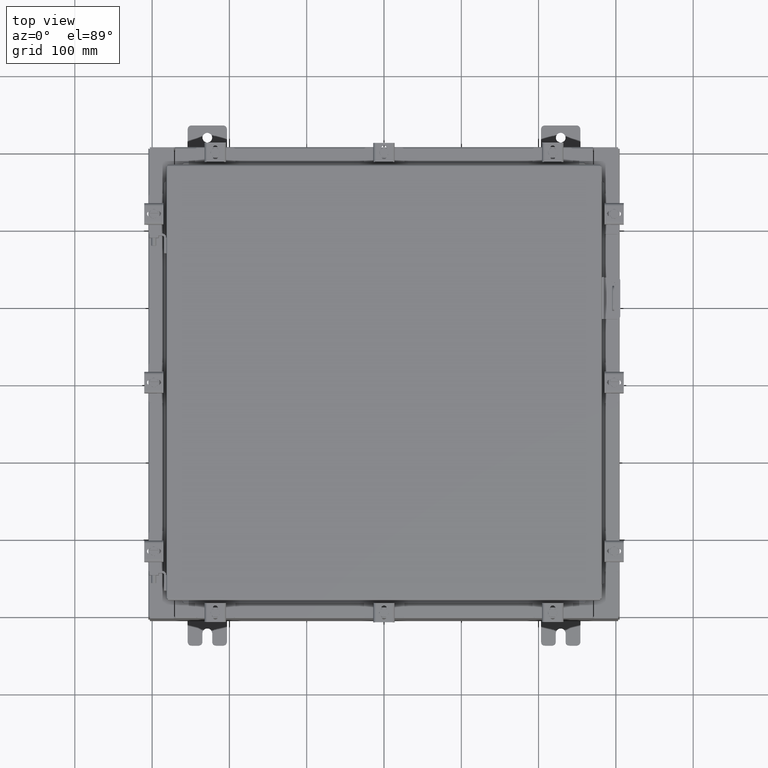
[diagram: clean part render]
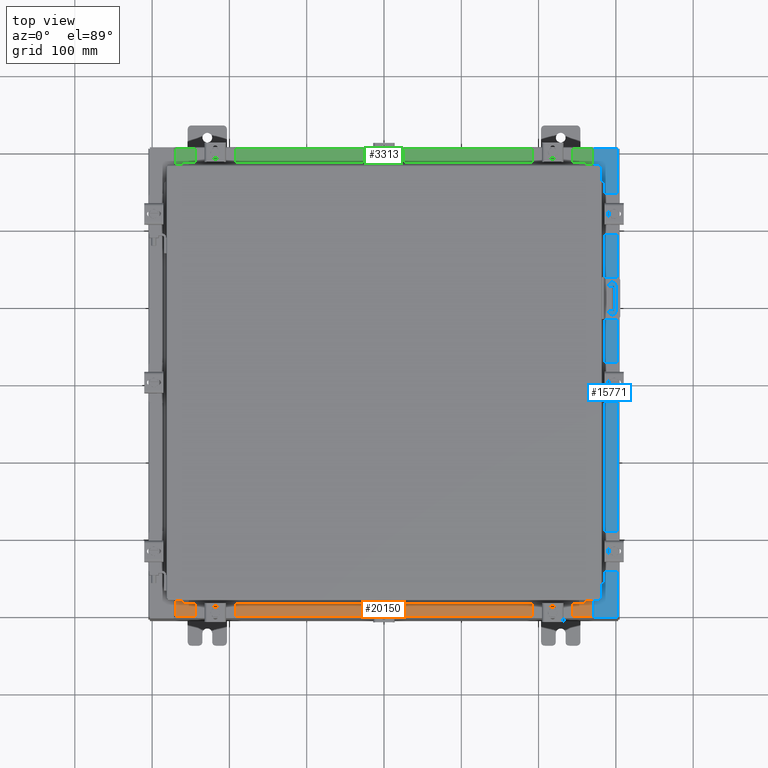
[diagram: same view with three faces highlighted in distinct colors, each labeled with its STEP entity id]
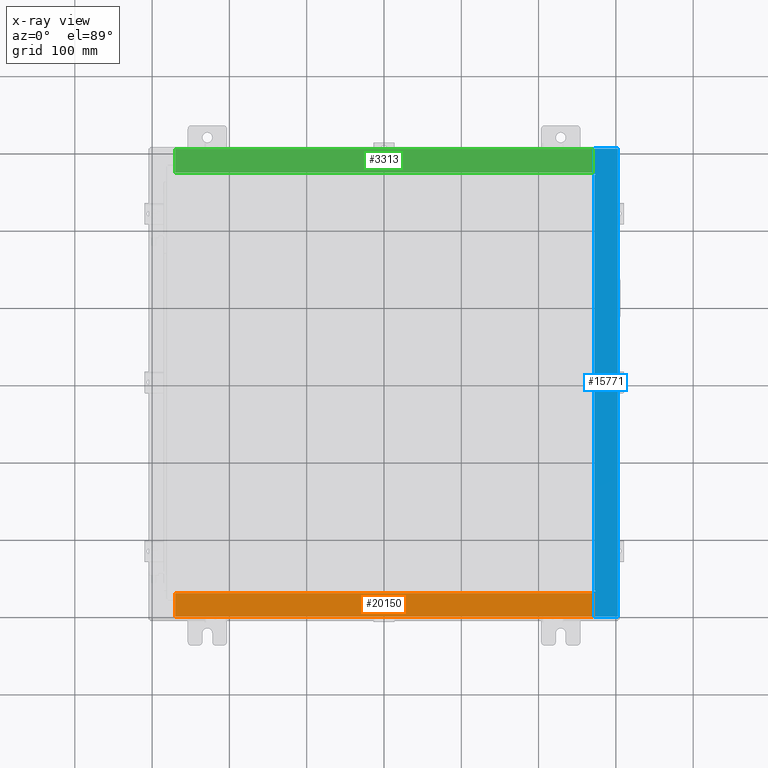
[diagram: x-ray of the same camera — body ghosted, the three highlighted faces saturated]
A machine part, top view with three faces highlighted in distinct colors.
The next image is the same camera in x-ray (body ghosted, the three faces saturated) — at least one of them is partly hidden behind the body in this view.
Their STEP definitions:

[orange] entity #20150 — the highlighted planar face has unit normal (-0, -0, 1).
#1366 = VECTOR ( 'NONE', #10856, 39.37007874015748100 ) ;
#2169 = DIRECTION ( 'NONE',  ( -1.000000000000000000, 2.568202152506545800E-017, -9.159187855938968600E-032 ) ) ;
#3078 = DIRECTION ( 'NONE',  ( -0.0000000000000000000, -1.000000000000000000, 3.566381192773190000E-015 ) ) ;
#3723 = VECTOR ( 'NONE', #6079, 39.37007874015748100 ) ;
#4505 = EDGE_CURVE ( 'NONE', #6584, #10974, #22250, .T. ) ;
#4519 = ORIENTED_EDGE ( 'NONE', *, *, #10184, .T. ) ;
#6079 = DIRECTION ( 'NONE',  ( -1.000000000000000000, 0.0000000000000000000, 0.0000000000000000000 ) ) ;
#6125 = CARTESIAN_POINT ( 'NONE',  ( -10.63720000000000200, -0.08770000000000000000, 4.000000000000000000 ) ) ;
#6481 = LINE ( 'NONE', #13547, #11128 ) ;
#6584 = VERTEX_POINT ( 'NONE', #8990 ) ;
#6663 = AXIS2_PLACEMENT_3D ( 'NONE', #10378, #22525, #12130 ) ;
#7214 = CARTESIAN_POINT ( 'NONE',  ( 10.63720000000000400, -1.287299999999999900, 4.000000000000003600 ) ) ;
#8990 = CARTESIAN_POINT ( 'NONE',  ( 10.63720000000000200, -1.287299999999999900, 4.000000000000004400 ) ) ;
#9043 = FACE_OUTER_BOUND ( 'NONE', #16691, .T. ) ;
#9597 = LINE ( 'NONE', #16118, #18339 ) ;
#10184 = EDGE_CURVE ( 'NONE', #19206, #12637, #9597, .T. ) ;
#10378 = CARTESIAN_POINT ( 'NONE',  ( 0.0000000000000000000, 1.425992975200418500E-014, 4.000000000000000000 ) ) ;
#10465 = CARTESIAN_POINT ( 'NONE',  ( -10.63720000000000200, -0.07469999999999973900, 4.000000000000000000 ) ) ;
#10653 = ORIENTED_EDGE ( 'NONE', *, *, #13399, .F. ) ;
#10856 = DIRECTION ( 'NONE',  ( -0.0000000000000000000, 1.000000000000000000, -3.566381192773190000E-015 ) ) ;
#10974 = VERTEX_POINT ( 'NONE', #21953 ) ;
#11128 = VECTOR ( 'NONE', #3078, 39.37007874015748100 ) ;
#11213 = EDGE_CURVE ( 'NONE', #10974, #12637, #14747, .T. ) ;
#12130 = DIRECTION ( 'NONE',  ( 0.0000000000000000000, -1.000000000000000000, 3.566381192773190000E-015 ) ) ;
#12637 = VERTEX_POINT ( 'NONE', #6125 ) ;
#13002 = CARTESIAN_POINT ( 'NONE',  ( 10.63720000000000400, -0.08769999999999965300, 4.000000000000000000 ) ) ;
#13399 = EDGE_CURVE ( 'NONE', #19206, #6584, #6481, .T. ) ;
#13547 = CARTESIAN_POINT ( 'NONE',  ( 10.63720000000000200, -1.300299999999999800, 4.000000000000004400 ) ) ;
#14747 = LINE ( 'NONE', #10465, #1366 ) ;
#16118 = CARTESIAN_POINT ( 'NONE',  ( -2.252313287748606700E-018, -0.08770000000000000000, 4.000000000000000900 ) ) ;
#16691 = EDGE_LOOP ( 'NONE', ( #19696, #20358, #10653, #4519 ) ) ;
#17307 = PLANE ( 'NONE',  #6663 ) ;
#18339 = VECTOR ( 'NONE', #2169, 39.37007874015748100 ) ;
#19206 = VERTEX_POINT ( 'NONE', #13002 ) ;
#19696 = ORIENTED_EDGE ( 'NONE', *, *, #11213, .F. ) ;
#20150 = ADVANCED_FACE ( 'NONE', ( #9043 ), #17307, .T. ) ;
#20358 = ORIENTED_EDGE ( 'NONE', *, *, #4505, .F. ) ;
#21953 = CARTESIAN_POINT ( 'NONE',  ( -10.63720000000000200, -1.287299999999999200, 4.000000000000004400 ) ) ;
#22250 = LINE ( 'NONE', #7214, #3723 ) ;
#22525 = DIRECTION ( 'NONE',  ( 0.0000000000000000000, 3.566381192773190000E-015, 1.000000000000000000 ) ) ;

[blue] entity #15771 — the highlighted planar face has unit normal (-0, -0, -1).
#333 = ORIENTED_EDGE ( 'NONE', *, *, #4528, .T. ) ;
#436 = DIRECTION ( 'NONE',  ( 1.000000000000000000, 0.0000000000000000000, 0.0000000000000000000 ) ) ;
#498 = DIRECTION ( 'NONE',  ( 6.241167087353086200E-015, 4.581600452255730400E-017, 1.000000000000000000 ) ) ;
#639 = VERTEX_POINT ( 'NONE', #4437 ) ;
#738 = VECTOR ( 'NONE', #21188, 39.37007874015748100 ) ;
#939 = CARTESIAN_POINT ( 'NONE',  ( 10.75005000000003000, -10.61242500000000200, 7.925300000000009800 ) ) ;
#1099 = PLANE ( 'NONE',  #1484 ) ;
#1221 = DIRECTION ( 'NONE',  ( -9.163200904511462000E-017, -1.000000000000000000, 4.581600452255787700E-017 ) ) ;
#1484 = AXIS2_PLACEMENT_3D ( 'NONE', #11587, #13355, #2900 ) ;
#1501 = VERTEX_POINT ( 'NONE', #11846 ) ;
#1634 = VERTEX_POINT ( 'NONE', #17453 ) ;
#1637 = CIRCLE ( 'NONE', #15465, 0.01867499999999949400 ) ;
#1918 = DIRECTION ( 'NONE',  ( -1.000000000000000000, 0.0000000000000000000, -2.170286390199955400E-014 ) ) ;
#1989 = CARTESIAN_POINT ( 'NONE',  ( 10.69970000000002800, 3.631055806426238000E-016, 7.925300000000008900 ) ) ;
#2619 = CIRCLE ( 'NONE', #11750, 0.01867499999999949400 ) ;
#2759 = DIRECTION ( 'NONE',  ( 1.000000000000000000, 0.0000000000000000000, 0.0000000000000000000 ) ) ;
#2801 = VERTEX_POINT ( 'NONE', #2894 ) ;
#2894 = CARTESIAN_POINT ( 'NONE',  ( 10.69970000000002800, -11.92530000000000400, 7.925300000000009800 ) ) ;
#2900 = DIRECTION ( 'NONE',  ( -1.000000000000000000, 0.0000000000000000000, 6.241167087353086200E-015 ) ) ;
#3139 = LINE ( 'NONE', #15476, #20600 ) ;
#3350 = ORIENTED_EDGE ( 'NONE', *, *, #5111, .T. ) ;
#3810 = VERTEX_POINT ( 'NONE', #6211 ) ;
#3873 = CARTESIAN_POINT ( 'NONE',  ( 10.71270000000003000, -10.59374999999999800, 7.925300000000009800 ) ) ;
#4131 = VERTEX_POINT ( 'NONE', #7353 ) ;
#4437 = CARTESIAN_POINT ( 'NONE',  ( 10.69970000000002800, 10.63109999999998600, 7.925300000000008900 ) ) ;
#4528 = EDGE_CURVE ( 'NONE', #2801, #3810, #8350, .T. ) ;
#4554 = VECTOR ( 'NONE', #1221, 39.37007874015748100 ) ;
#4602 = EDGE_CURVE ( 'NONE', #13484, #13914, #2619, .T. ) ;
#5111 = EDGE_CURVE ( 'NONE', #1501, #2801, #21139, .T. ) ;
#5399 = DIRECTION ( 'NONE',  ( 1.000000000000000000, 0.0000000000000000000, -6.241167087353087800E-015 ) ) ;
#5609 = DIRECTION ( 'NONE',  ( -0.0000000000000000000, 1.000000000000000000, -0.0000000000000000000 ) ) ;
#5721 = EDGE_CURVE ( 'NONE', #13914, #17753, #3139, .T. ) ;
#5830 = VERTEX_POINT ( 'NONE', #12265 ) ;
#5838 = CARTESIAN_POINT ( 'NONE',  ( 10.75005000000003000, -10.59375000000000200, 7.925300000000008900 ) ) ;
#5847 = ORIENTED_EDGE ( 'NONE', *, *, #13300, .F. ) ;
#5923 = CARTESIAN_POINT ( 'NONE',  ( 4.972393517341146200E-014, -11.92530000000000400, 7.925300000000076400 ) ) ;
#6082 = CARTESIAN_POINT ( 'NONE',  ( 10.69970000000002800, -10.63110000000000200, 7.925300000000008900 ) ) ;
#6127 = ORIENTED_EDGE ( 'NONE', *, *, #21948, .F. ) ;
#6211 = CARTESIAN_POINT ( 'NONE',  ( 11.91230000000002900, -11.92530000000000400, 7.925300000000000900 ) ) ;
#6829 = EDGE_CURVE ( 'NONE', #1501, #13484, #16992, .T. ) ;
#6947 = DIRECTION ( 'NONE',  ( 6.241167087353086200E-015, 4.581600452255730400E-017, 1.000000000000000000 ) ) ;
#7125 = EDGE_CURVE ( 'NONE', #1634, #4131, #7954, .T. ) ;
#7353 = CARTESIAN_POINT ( 'NONE',  ( 10.69970000000002800, 11.92529999999999600, 7.925300000000008900 ) ) ;
#7954 = LINE ( 'NONE', #12294, #16692 ) ;
#8350 = LINE ( 'NONE', #5923, #17093 ) ;
#8657 = LINE ( 'NONE', #11465, #12233 ) ;
#8761 = CARTESIAN_POINT ( 'NONE',  ( 10.75005000000003000, 10.63109999999998400, 7.925300000000009800 ) ) ;
#9374 = LINE ( 'NONE', #3873, #18130 ) ;
#10292 = ORIENTED_EDGE ( 'NONE', *, *, #21429, .F. ) ;
#10357 = VERTEX_POINT ( 'NONE', #16728 ) ;
#10616 = LINE ( 'NONE', #1989, #738 ) ;
#10634 = CARTESIAN_POINT ( 'NONE',  ( 10.69970000000002800, 3.631055806426238000E-016, 7.925300000000008900 ) ) ;
#10821 = DIRECTION ( 'NONE',  ( -4.379057701015054300E-047, -1.000000000000000000, 4.581600452255731000E-017 ) ) ;
#10991 = ORIENTED_EDGE ( 'NONE', *, *, #7125, .T. ) ;
#11465 = CARTESIAN_POINT ( 'NONE',  ( 10.71270000000003000, 10.59374999999998400, 7.925300000000009800 ) ) ;
#11587 = CARTESIAN_POINT ( 'NONE',  ( 4.972393517341146200E-014, 3.631055806426268100E-016, 7.925300000000075500 ) ) ;
#11750 = AXIS2_PLACEMENT_3D ( 'NONE', #939, #498, #436 ) ;
#11846 = CARTESIAN_POINT ( 'NONE',  ( 10.69970000000002800, -10.63110000000000200, 7.925300000000008900 ) ) ;
#11896 = VECTOR ( 'NONE', #10821, 39.37007874015748100 ) ;
#11978 = VERTEX_POINT ( 'NONE', #18541 ) ;
#12127 = ORIENTED_EDGE ( 'NONE', *, *, #17961, .F. ) ;
#12233 = VECTOR ( 'NONE', #2759, 39.37007874015748100 ) ;
#12265 = CARTESIAN_POINT ( 'NONE',  ( 10.71270000000003000, 10.59374999999998400, 7.925300000000009800 ) ) ;
#12294 = CARTESIAN_POINT ( 'NONE',  ( 4.972393517341146200E-014, 11.92529999999999600, 7.925300000000075500 ) ) ;
#12365 = VECTOR ( 'NONE', #18309, 39.37007874015748100 ) ;
#13300 = EDGE_CURVE ( 'NONE', #5830, #10357, #8657, .T. ) ;
#13302 = LINE ( 'NONE', #13454, #4554 ) ;
#13355 = DIRECTION ( 'NONE',  ( -6.241167087353086200E-015, -4.581600452255731000E-017, -1.000000000000000000 ) ) ;
#13454 = CARTESIAN_POINT ( 'NONE',  ( 11.91230000000002700, -11.92530000000000400, 7.925300000000000900 ) ) ;
#13484 = VERTEX_POINT ( 'NONE', #18956 ) ;
#13715 = EDGE_CURVE ( 'NONE', #4131, #639, #10616, .T. ) ;
#13830 = CARTESIAN_POINT ( 'NONE',  ( 10.71270000000003000, -10.59375000000000200, 7.925300000000009800 ) ) ;
#13914 = VERTEX_POINT ( 'NONE', #5838 ) ;
#13917 = VECTOR ( 'NONE', #1918, 39.37007874015748100 ) ;
#14223 = EDGE_LOOP ( 'NONE', ( #19327, #3350, #333, #14871, #10991, #19569, #6127, #10292, #5847, #12127, #15387, #22043 ) ) ;
#14871 = ORIENTED_EDGE ( 'NONE', *, *, #15184, .F. ) ;
#15184 = EDGE_CURVE ( 'NONE', #1634, #3810, #13302, .T. ) ;
#15387 = ORIENTED_EDGE ( 'NONE', *, *, #5721, .F. ) ;
#15465 = AXIS2_PLACEMENT_3D ( 'NONE', #17415, #6947, #19174 ) ;
#15476 = CARTESIAN_POINT ( 'NONE',  ( 10.75005000000003000, -10.59375000000000200, 7.925300000000009800 ) ) ;
#15771 = ADVANCED_FACE ( 'NONE', ( #17363 ), #1099, .F. ) ;
#16692 = VECTOR ( 'NONE', #17564, 39.37007874015748100 ) ;
#16728 = CARTESIAN_POINT ( 'NONE',  ( 10.75005000000003000, 10.59374999999998400, 7.925300000000007100 ) ) ;
#16992 = LINE ( 'NONE', #6082, #12365 ) ;
#17093 = VECTOR ( 'NONE', #5399, 39.37007874015748100 ) ;
#17363 = FACE_OUTER_BOUND ( 'NONE', #14223, .T. ) ;
#17415 = CARTESIAN_POINT ( 'NONE',  ( 10.75005000000003000, 10.61242499999998400, 7.925300000000009800 ) ) ;
#17453 = CARTESIAN_POINT ( 'NONE',  ( 11.91230000000002900, 11.92529999999999600, 7.925300000000000000 ) ) ;
#17564 = DIRECTION ( 'NONE',  ( -1.000000000000000000, 0.0000000000000000000, 6.241167087353087800E-015 ) ) ;
#17753 = VERTEX_POINT ( 'NONE', #13830 ) ;
#17961 = EDGE_CURVE ( 'NONE', #17753, #5830, #9374, .T. ) ;
#18130 = VECTOR ( 'NONE', #5609, 39.37007874015748100 ) ;
#18309 = DIRECTION ( 'NONE',  ( 1.000000000000000000, 0.0000000000000000000, 2.170286390199955400E-014 ) ) ;
#18541 = CARTESIAN_POINT ( 'NONE',  ( 10.75005000000003000, 10.63109999999998400, 7.925300000000008900 ) ) ;
#18956 = CARTESIAN_POINT ( 'NONE',  ( 10.75005000000003000, -10.63110000000000200, 7.925300000000008900 ) ) ;
#19104 = LINE ( 'NONE', #8761, #13917 ) ;
#19174 = DIRECTION ( 'NONE',  ( 1.000000000000000000, 0.0000000000000000000, 0.0000000000000000000 ) ) ;
#19327 = ORIENTED_EDGE ( 'NONE', *, *, #6829, .F. ) ;
#19569 = ORIENTED_EDGE ( 'NONE', *, *, #13715, .T. ) ;
#20600 = VECTOR ( 'NONE', #20659, 39.37007874015748100 ) ;
#20659 = DIRECTION ( 'NONE',  ( -1.000000000000000000, 0.0000000000000000000, 0.0000000000000000000 ) ) ;
#21139 = LINE ( 'NONE', #10634, #11896 ) ;
#21188 = DIRECTION ( 'NONE',  ( -4.379057701015054300E-047, -1.000000000000000000, 4.581600452255731000E-017 ) ) ;
#21429 = EDGE_CURVE ( 'NONE', #10357, #11978, #1637, .T. ) ;
#21948 = EDGE_CURVE ( 'NONE', #11978, #639, #19104, .T. ) ;
#22043 = ORIENTED_EDGE ( 'NONE', *, *, #4602, .F. ) ;

[green] entity #3313 — the highlighted planar face has unit normal (0, 0, 1).
#986 = VECTOR ( 'NONE', #1092, 39.37007874015748100 ) ;
#1092 = DIRECTION ( 'NONE',  ( -1.000000000000000000, 2.568202152506545800E-017, -9.159187855938968600E-032 ) ) ;
#1136 = ORIENTED_EDGE ( 'NONE', *, *, #2744, .T. ) ;
#2194 = VECTOR ( 'NONE', #7910, 39.37007874015748100 ) ;
#2673 = CARTESIAN_POINT ( 'NONE',  ( -10.63720000000000200, -1.287299999999999200, 4.000000000000004400 ) ) ;
#2744 = EDGE_CURVE ( 'NONE', #20662, #8381, #15491, .T. ) ;
#3313 = ADVANCED_FACE ( 'NONE', ( #19036 ), #3969, .T. ) ;
#3892 = ORIENTED_EDGE ( 'NONE', *, *, #10942, .F. ) ;
#3969 = PLANE ( 'NONE',  #13929 ) ;
#4065 = VECTOR ( 'NONE', #6620, 39.37007874015748100 ) ;
#4259 = CARTESIAN_POINT ( 'NONE',  ( 0.0000000000000000000, 1.425992975200418500E-014, 4.000000000000000000 ) ) ;
#4466 = ORIENTED_EDGE ( 'NONE', *, *, #5785, .F. ) ;
#5785 = EDGE_CURVE ( 'NONE', #20662, #14113, #20029, .T. ) ;
#6390 = DIRECTION ( 'NONE',  ( 0.0000000000000000000, 3.566381192773190000E-015, 1.000000000000000000 ) ) ;
#6463 = DIRECTION ( 'NONE',  ( 0.0000000000000000000, -1.000000000000000000, 3.566381192773190000E-015 ) ) ;
#6598 = CARTESIAN_POINT ( 'NONE',  ( 10.63720000000000400, -0.08769999999999965300, 4.000000000000000000 ) ) ;
#6620 = DIRECTION ( 'NONE',  ( -0.0000000000000000000, 1.000000000000000000, -3.566381192773190000E-015 ) ) ;
#6821 = CARTESIAN_POINT ( 'NONE',  ( 10.63720000000000200, -1.300299999999999800, 4.000000000000004400 ) ) ;
#7910 = DIRECTION ( 'NONE',  ( -1.000000000000000000, 0.0000000000000000000, 0.0000000000000000000 ) ) ;
#8381 = VERTEX_POINT ( 'NONE', #13792 ) ;
#8691 = LINE ( 'NONE', #10083, #4065 ) ;
#10083 = CARTESIAN_POINT ( 'NONE',  ( -10.63720000000000200, -0.07469999999999973900, 4.000000000000000000 ) ) ;
#10235 = VECTOR ( 'NONE', #19139, 39.37007874015748100 ) ;
#10869 = ORIENTED_EDGE ( 'NONE', *, *, #12113, .F. ) ;
#10942 = EDGE_CURVE ( 'NONE', #14113, #17050, #11501, .T. ) ;
#11501 = LINE ( 'NONE', #18401, #2194 ) ;
#12113 = EDGE_CURVE ( 'NONE', #17050, #8381, #8691, .T. ) ;
#13792 = CARTESIAN_POINT ( 'NONE',  ( -10.63720000000000200, -0.08770000000000000000, 4.000000000000000000 ) ) ;
#13929 = AXIS2_PLACEMENT_3D ( 'NONE', #4259, #6390, #6463 ) ;
#14113 = VERTEX_POINT ( 'NONE', #22004 ) ;
#15491 = LINE ( 'NONE', #16939, #986 ) ;
#16939 = CARTESIAN_POINT ( 'NONE',  ( -2.252313287748606700E-018, -0.08770000000000000000, 4.000000000000000900 ) ) ;
#17050 = VERTEX_POINT ( 'NONE', #2673 ) ;
#18401 = CARTESIAN_POINT ( 'NONE',  ( 10.63720000000000400, -1.287299999999999900, 4.000000000000003600 ) ) ;
#19036 = FACE_OUTER_BOUND ( 'NONE', #21031, .T. ) ;
#19139 = DIRECTION ( 'NONE',  ( -0.0000000000000000000, -1.000000000000000000, 3.566381192773190000E-015 ) ) ;
#20029 = LINE ( 'NONE', #6821, #10235 ) ;
#20662 = VERTEX_POINT ( 'NONE', #6598 ) ;
#21031 = EDGE_LOOP ( 'NONE', ( #10869, #3892, #4466, #1136 ) ) ;
#22004 = CARTESIAN_POINT ( 'NONE',  ( 10.63720000000000200, -1.287299999999999900, 4.000000000000004400 ) ) ;